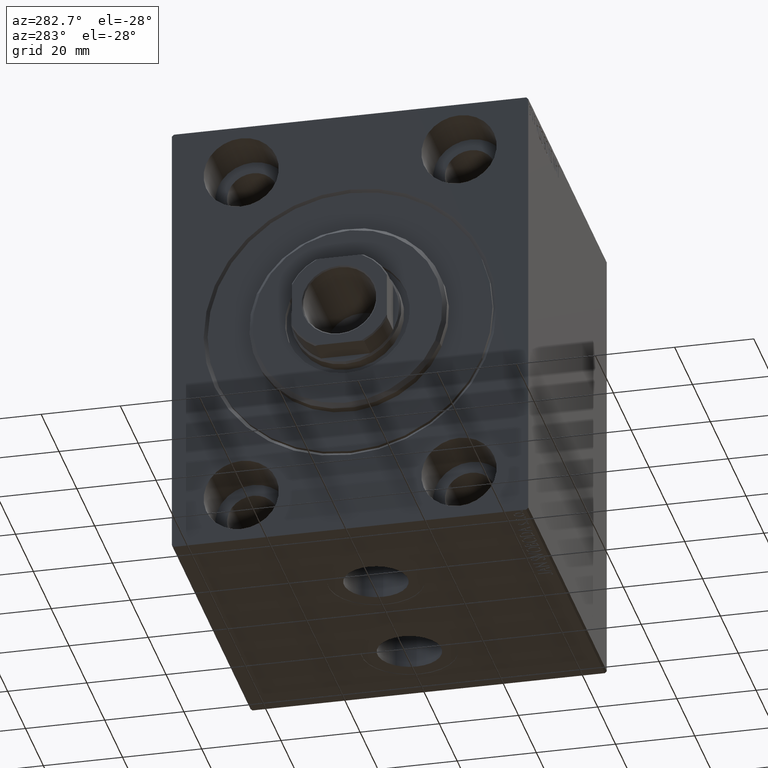
[diagram: clean part render]
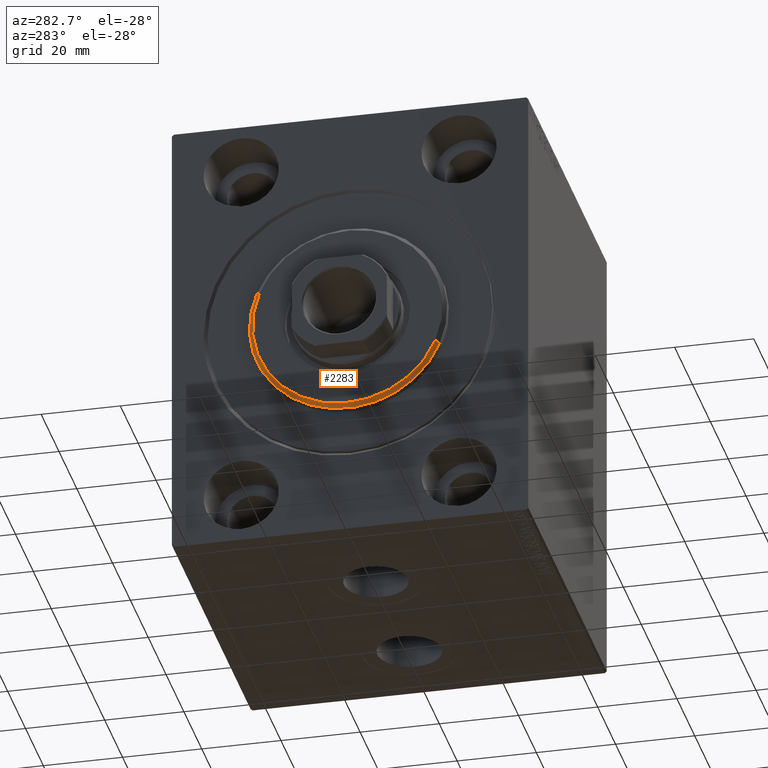
[diagram: same view with one face highlighted and labeled with its STEP entity id]
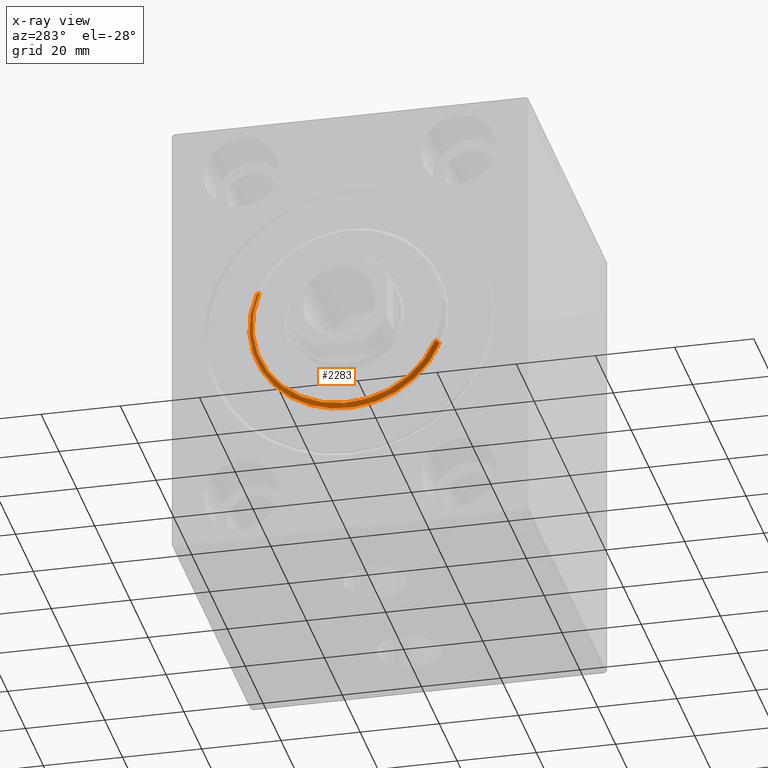
[diagram: x-ray of the same camera — body ghosted, the highlighted face saturated]
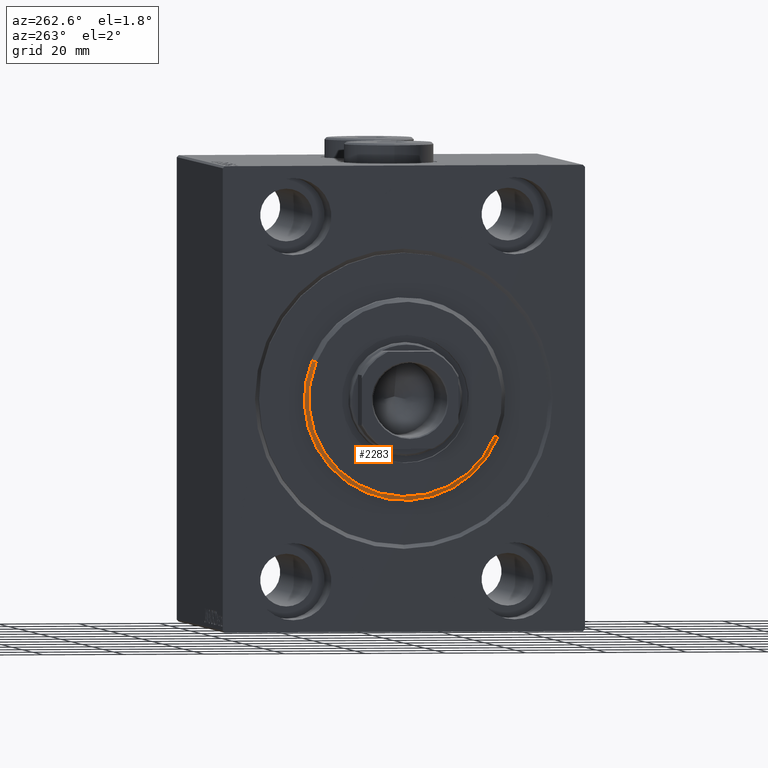
[diagram: same view with one face highlighted and labeled with its STEP entity id]
A machine part, auxiliary view. The second image highlights one B-rep face of the part: STEP entity #2283.
The next image is the same camera in x-ray: the body ghosted, the highlighted face saturated — about 0% of this face is hidden behind the body in this view.
A second angle (auxiliary view) of the same face is appended — the face is thin or edge-on in the first view.
In plain terms, the highlighted conical surface has half-angle 45 deg.
Its self-contained STEP definition (entity closure, byte-faithful):
#1138 = EDGE_CURVE ( 'NONE', #32764, #4283, #39348, .T. ) ;
#1216 = DIRECTION ( 'NONE',  ( 0.000000000000000000, 0.000000000000000000, -1.000000000000000000 ) ) ;
#2283 = ADVANCED_FACE ( 'NONE', ( #19056 ), #16745, .T. ) ;
#2583 = EDGE_CURVE ( 'NONE', #31547, #20388, #19709, .T. ) ;
#4283 = VERTEX_POINT ( 'NONE', #5321 ) ;
#5170 = VECTOR ( 'NONE', #14923, 999.9999999999998863 ) ;
#5321 = CARTESIAN_POINT ( 'NONE',  ( 3.000000000000000000, 0.000000000000000000, 24.00000000000003553 ) ) ;
#5413 = CARTESIAN_POINT ( 'NONE',  ( 3.000000000000000000, 0.000000000000000000, 0.000000000000000000 ) ) ;
#8783 = CARTESIAN_POINT ( 'NONE',  ( 3.000000000000000000, 0.000000000000000000, 0.000000000000000000 ) ) ;
#10558 = ORIENTED_EDGE ( 'NONE', *, *, #1138, .F. ) ;
#11526 = DIRECTION ( 'NONE',  ( 0.000000000000000000, 0.000000000000000000, 1.000000000000000000 ) ) ;
#11940 = ORIENTED_EDGE ( 'NONE', *, *, #17673, .F. ) ;
#12030 = DIRECTION ( 'NONE',  ( 0.000000000000000000, 0.000000000000000000, -1.000000000000000000 ) ) ;
#13138 = ORIENTED_EDGE ( 'NONE', *, *, #2583, .F. ) ;
#14296 = CARTESIAN_POINT ( 'NONE',  ( 2.000000000000030198, 0.000000000000000000, 25.00000000000000000 ) ) ;
#14923 = DIRECTION ( 'NONE',  ( -0.7071067811865489050, 8.659560562354918067E-17, -0.7071067811865462405 ) ) ;
#14956 = DIRECTION ( 'NONE',  ( -1.000000000000000000, 0.000000000000000000, 0.000000000000000000 ) ) ;
#16745 = CONICAL_SURFACE ( 'NONE', #42235, 24.00000000000003553, 0.7853981633974465026 ) ;
#17673 = EDGE_CURVE ( 'NONE', #4283, #31547, #29055, .T. ) ;
#18086 = CARTESIAN_POINT ( 'NONE',  ( 2.000000000000030198, 0.000000000000000000, 0.000000000000000000 ) ) ;
#18091 = DIRECTION ( 'NONE',  ( -0.7071067811865489050, 0.000000000000000000, 0.7071067811865462405 ) ) ;
#18781 = DIRECTION ( 'NONE',  ( -1.000000000000000000, 0.000000000000000000, 0.000000000000000000 ) ) ;
#18798 = CARTESIAN_POINT ( 'NONE',  ( 3.000000000000000000, 2.939152317953651839E-15, -24.00000000000003553 ) ) ;
#19056 = FACE_OUTER_BOUND ( 'NONE', #31188, .T. ) ;
#19709 = CIRCLE ( 'NONE', #20420, 25.00000000000000000 ) ;
#20388 = VERTEX_POINT ( 'NONE', #35461 ) ;
#20420 = AXIS2_PLACEMENT_3D ( 'NONE', #18086, #18781, #1216 ) ;
#24735 = AXIS2_PLACEMENT_3D ( 'NONE', #5413, #43510, #12030 ) ;
#29055 = LINE ( 'NONE', #43198, #29716 ) ;
#29716 = VECTOR ( 'NONE', #18091, 999.9999999999998863 ) ;
#30579 = EDGE_CURVE ( 'NONE', #32764, #20388, #38877, .T. ) ;
#31188 = EDGE_LOOP ( 'NONE', ( #10558, #44408, #13138, #11940 ) ) ;
#31547 = VERTEX_POINT ( 'NONE', #14296 ) ;
#32764 = VERTEX_POINT ( 'NONE', #39282 ) ;
#35461 = CARTESIAN_POINT ( 'NONE',  ( 2.000000000000030198, 3.061616997868383043E-15, -25.00000000000000000 ) ) ;
#38877 = LINE ( 'NONE', #18798, #5170 ) ;
#39282 = CARTESIAN_POINT ( 'NONE',  ( 3.000000000000000000, 3.000384657911017441E-15, -24.00000000000003553 ) ) ;
#39348 = CIRCLE ( 'NONE', #24735, 24.00000000000003553 ) ;
#42235 = AXIS2_PLACEMENT_3D ( 'NONE', #8783, #14956, #11526 ) ;
#43198 = CARTESIAN_POINT ( 'NONE',  ( 3.000000000000000000, 0.000000000000000000, 24.00000000000003553 ) ) ;
#43510 = DIRECTION ( 'NONE',  ( 1.000000000000000000, -0.000000000000000000, 0.000000000000000000 ) ) ;
#44408 = ORIENTED_EDGE ( 'NONE', *, *, #30579, .T. ) ;